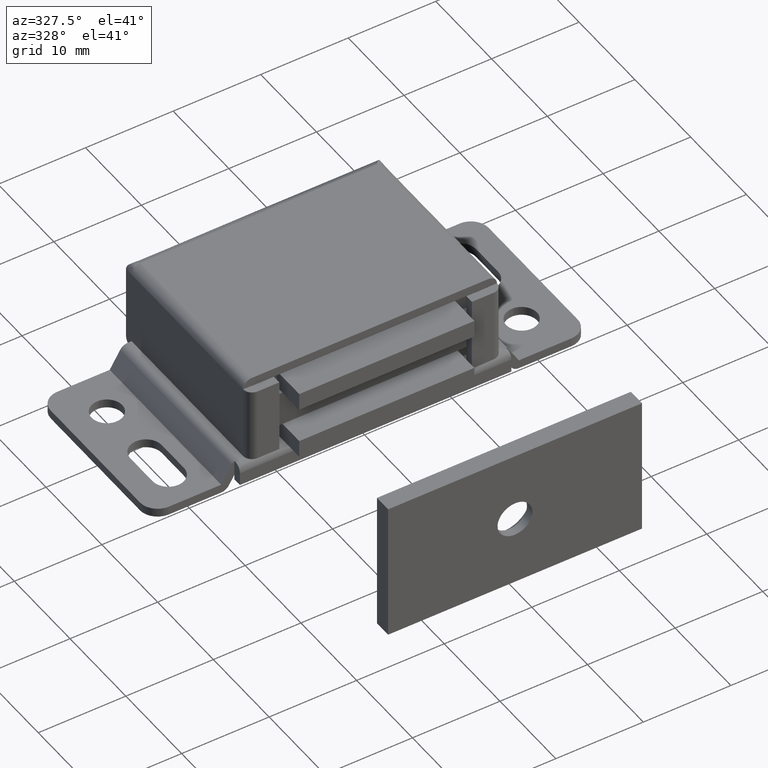
[diagram: clean part render]
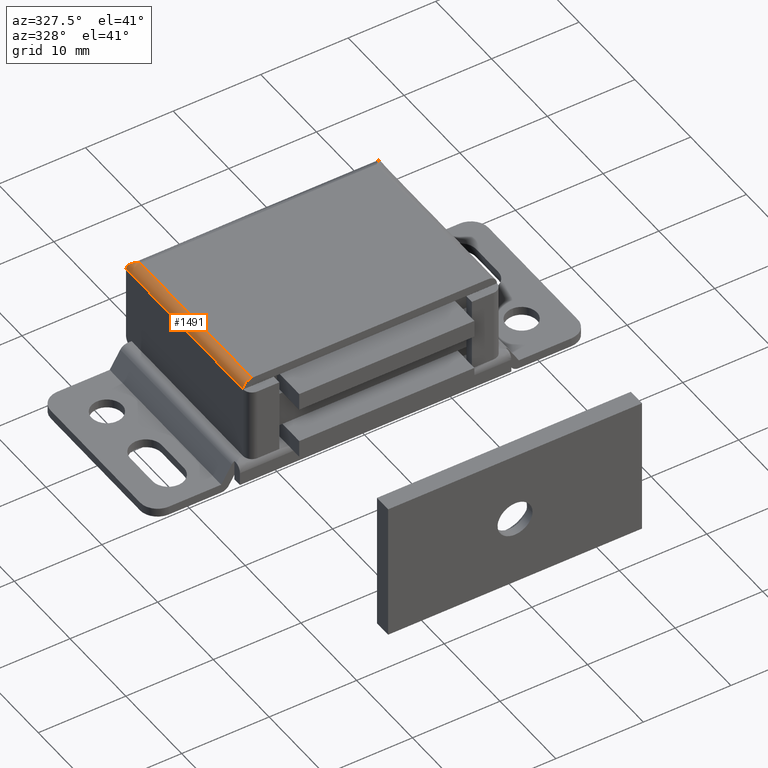
[diagram: same view with one face highlighted and labeled with its STEP entity id]
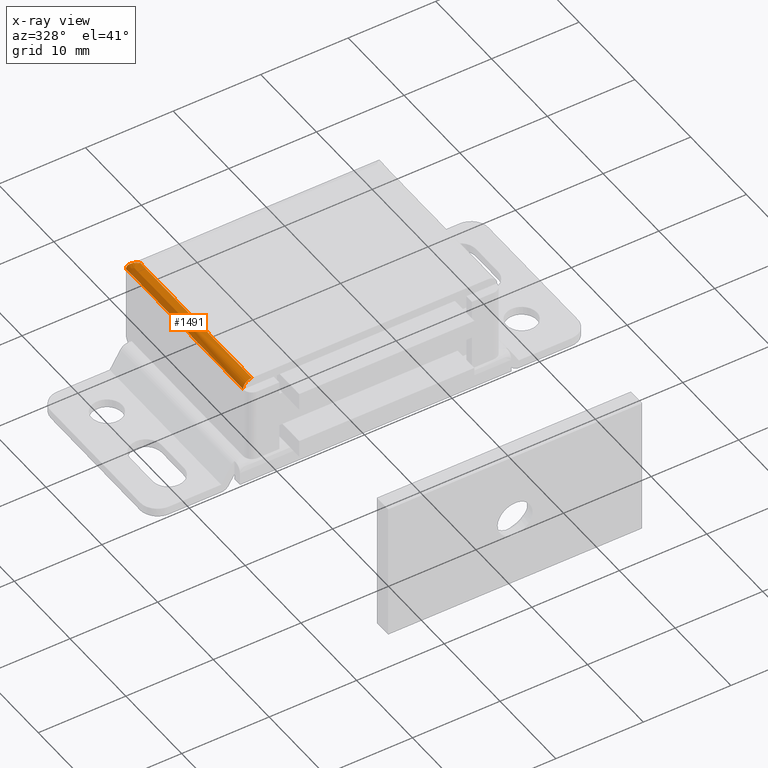
[diagram: x-ray of the same camera — body ghosted, the highlighted face saturated]
A machine part, auxiliary view. The second image highlights one B-rep face of the part: STEP entity #1491.
The next image is the same camera in x-ray: the body ghosted, the highlighted face saturated — about 0% of this face is hidden behind the body in this view.
In plain terms, the highlighted face is a freeform B-spline surface patch.
Its self-contained STEP definition (entity closure, byte-faithful):
#1258=CARTESIAN_POINT('',(-13.500000000000000,-1.0,13.0));
#1259=VERTEX_POINT('',#1258);
#1265=CARTESIAN_POINT('',(-13.500000000000000,-21.0,13.0));
#1266=VERTEX_POINT('',#1265);
#1267=CARTESIAN_POINT('',(-13.500000000000000,-1.0,13.0));
#1268=CARTESIAN_POINT('',(-13.500000000000000,-21.0,13.0));
#1269=QUASI_UNIFORM_CURVE('',1,(#1267,#1268),.UNSPECIFIED.,.F.,.U.);
#1270=EDGE_CURVE('',#1259,#1266,#1269,.T.);
#1293=CARTESIAN_POINT('',(-14.500000000000000,-21.0,12.0));
#1294=VERTEX_POINT('',#1293);
#1295=CARTESIAN_POINT('',(-13.500000000000000,-21.0,13.0));
#1296=CARTESIAN_POINT('',(-14.500000000000000,-21.000000000000004,13.000000000000004));
#1297=CARTESIAN_POINT('',(-14.500000000000000,-21.0,12.0));
#1305=(BOUNDED_CURVE()B_SPLINE_CURVE(2,(#1295,#1296,#1297),.UNSPECIFIED.,.F.,.U.)CURVE()GEOMETRIC_REPRESENTATION_ITEM()QUASI_UNIFORM_CURVE()RATIONAL_B_SPLINE_CURVE((1.0,0.707106781186548,1.0))REPRESENTATION_ITEM(''));
#1306=EDGE_CURVE('',#1266,#1294,#1305,.T.);
#1439=CARTESIAN_POINT('',(-13.473823051692129,-21.525000000000009,12.999657324975560));
#1440=CARTESIAN_POINT('',(-13.473823051692129,0.538125000000001,12.999657324975560));
#1441=CARTESIAN_POINT('',(-14.574984800554718,-21.525000000000006,13.028492260166260));
#1442=CARTESIAN_POINT('',(-14.574984800554718,0.538125000000001,13.028492260166260));
#1443=CARTESIAN_POINT('',(-14.497524479380806,-21.525000000000013,11.929679924374023));
#1444=CARTESIAN_POINT('',(-14.497524479380806,0.538125000000001,11.929679924374023));
#1452=(BOUNDED_SURFACE()B_SPLINE_SURFACE(1,2,((#1439,#1441,#1443),(#1440,#1442,#1444)),.UNSPECIFIED.,.F.,.F.,.U.)B_SPLINE_SURFACE_WITH_KNOTS((2,2),(3,3),(0.0,22.063125000000010),(0.0,0.994518632334191),.UNSPECIFIED.)GEOMETRIC_REPRESENTATION_ITEM()RATIONAL_B_SPLINE_SURFACE(((1.0,0.670944223154768,0.996392648609106),(1.0,0.670944223154768,0.996392648609106)))REPRESENTATION_ITEM('')SURFACE());
#1453=ORIENTED_EDGE('',*,*,#1306,.F.);
#1454=ORIENTED_EDGE('',*,*,#1270,.F.);
#1455=CARTESIAN_POINT('',(-14.500000000000000,0.0,12.0));
#1456=VERTEX_POINT('',#1455);
#1457=CARTESIAN_POINT('',(-14.500000000000000,-6.505213E-016,12.0));
#1458=CARTESIAN_POINT('',(-14.499999999999995,-6.505213E-016,13.000000000000002));
#1459=CARTESIAN_POINT('',(-13.500000000000000,-1.0,13.0));
#1467=(BOUNDED_CURVE()B_SPLINE_CURVE(2,(#1457,#1458,#1459),.UNSPECIFIED.,.F.,.U.)CURVE()GEOMETRIC_REPRESENTATION_ITEM()QUASI_UNIFORM_CURVE()RATIONAL_B_SPLINE_CURVE((1.0,0.707106781186547,1.0))REPRESENTATION_ITEM(''));
#1468=EDGE_CURVE('',#1456,#1259,#1467,.T.);
#1469=ORIENTED_EDGE('',*,*,#1468,.F.);
#1470=CARTESIAN_POINT('',(-14.500000000000000,-1.0,12.0));
#1471=VERTEX_POINT('',#1470);
#1472=CARTESIAN_POINT('',(-14.500000000000000,-1.0,12.0));
#1473=CARTESIAN_POINT('',(-14.500000000000000,0.0,12.0));
#1474=QUASI_UNIFORM_CURVE('',1,(#1472,#1473),.UNSPECIFIED.,.F.,.U.);
#1475=EDGE_CURVE('',#1471,#1456,#1474,.T.);
#1476=ORIENTED_EDGE('',*,*,#1475,.F.);
#1477=CARTESIAN_POINT('',(-14.500000000000000,-1.009999999999954,12.0));
#1478=VERTEX_POINT('',#1477);
#1479=CARTESIAN_POINT('',(-14.500000000000000,-1.0,12.0));
#1480=CARTESIAN_POINT('',(-14.500000000000000,-1.009999999999954,12.0));
#1481=QUASI_UNIFORM_CURVE('',1,(#1479,#1480),.UNSPECIFIED.,.F.,.U.);
#1482=EDGE_CURVE('',#1471,#1478,#1481,.T.);
#1483=ORIENTED_EDGE('',*,*,#1482,.T.);
#1484=CARTESIAN_POINT('',(-14.500000000000000,-21.0,12.0));
#1485=CARTESIAN_POINT('',(-14.500000000000000,-1.009999999999954,12.0));
#1486=QUASI_UNIFORM_CURVE('',1,(#1484,#1485),.UNSPECIFIED.,.F.,.U.);
#1487=EDGE_CURVE('',#1294,#1478,#1486,.T.);
#1488=ORIENTED_EDGE('',*,*,#1487,.F.);
#1489=EDGE_LOOP('',(#1453,#1454,#1469,#1476,#1483,#1488));
#1490=FACE_OUTER_BOUND('',#1489,.T.);
#1491=ADVANCED_FACE('',(#1490),#1452,.T.);